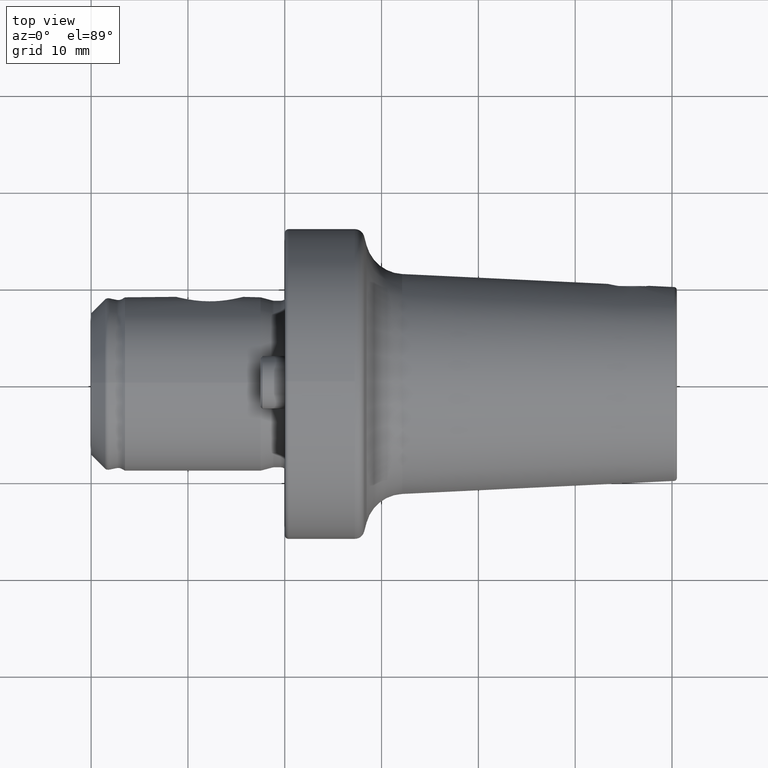
[diagram: clean part render]
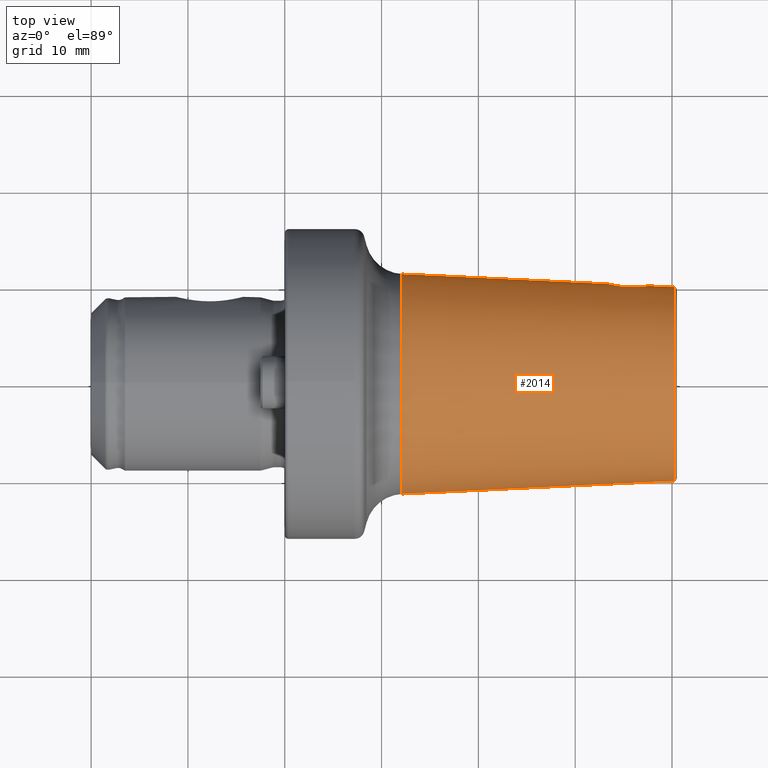
[diagram: same view with one face highlighted and labeled with its STEP entity id]
A machine part, top view. The second image highlights one B-rep face of the part: STEP entity #2014.
In plain terms, the highlighted conical surface has half-angle 2.744 deg.
Its self-contained STEP definition (entity closure, byte-faithful):
#44 = DIRECTION ( 'NONE',  ( -1.000000000000000000, -1.194808096838946000E-017, 0.0000000000000000000 ) ) ;
#205 = AXIS2_PLACEMENT_3D ( 'NONE', #3133, #3124, #3117 ) ;
#647 = VERTEX_POINT ( 'NONE', #930 ) ;
#781 = VERTEX_POINT ( 'NONE', #2693 ) ;
#930 = CARTESIAN_POINT ( 'NONE',  ( 40.21436315809494000, -10.01369119104573000, 0.0000000000000000000 ) ) ;
#1152 = AXIS2_PLACEMENT_3D ( 'NONE', #4785, #44, #4823 ) ;
#1156 = B_SPLINE_CURVE_WITH_KNOTS ( 'NONE', 3,
 ( #3064, #3006, #2335, #3068, #3059, #2746, #2764, #2741, #2725, #2804, #2698, #1337, #1320, #1932, #1925, #1914, #2220, #2158, #2175, #2080, #2107, #2060 ),
 .UNSPECIFIED., .F., .F.,
 ( 4, 2, 2, 2, 2, 2, 2, 2, 2, 2, 4 ),
 ( 0.5006833383641199300, 0.5481520035347401400, 0.5718863361200509100, 0.5956206687053616800, 0.6430893338759833300, 0.6668236664612948700, 0.6905579990466064200, 0.7380266642172279600, 0.7854953293878497200, 0.8329639945584712500, 0.8804326597290930100 ),
 .UNSPECIFIED. ) ;
#1316 = CARTESIAN_POINT ( 'NONE',  ( 37.61423800997615500, 10.13830824790992000, -1.106821354944760900E-007 ) ) ;
#1320 = CARTESIAN_POINT ( 'NONE',  ( 34.77451871940486000, 10.05357426139208100, 2.119329739271288600 ) ) ;
#1337 = CARTESIAN_POINT ( 'NONE',  ( 34.87910578632378400, 10.04095357779442000, 2.154306207191542600 ) ) ;
#1406 = B_SPLINE_CURVE_WITH_KNOTS ( 'NONE', 3,
 ( #2429, #2481, #2416, #2409, #2399, #2389, #2380, #2374 ),
 .UNSPECIFIED., .F., .F.,
 ( 4, 2, 2, 4 ),
 ( 0.3805760652261107000, 0.4106028835106128600, 0.4406297017951150700, 0.5006833383641199300 ),
 .UNSPECIFIED. ) ;
#1501 = DIRECTION ( 'NONE',  ( -0.9988532296229603000, -0.04787719364981369400, 0.0000000000000000000 ) ) ;
#1541 = EDGE_CURVE ( 'NONE', #2539, #3149, #1156, .T. ) ;
#1567 = CARTESIAN_POINT ( 'NONE',  ( 40.21436315809494000, -10.01369119104573200, 0.0000000000000000000 ) ) ;
#1685 = DIRECTION ( 'NONE',  ( 0.0000000000000000000, -1.000000000000000000, 0.0000000000000000000 ) ) ;
#1698 = DIRECTION ( 'NONE',  ( 1.000000000000000000, 1.194808096838946000E-017, -0.0000000000000000000 ) ) ;
#1700 = CARTESIAN_POINT ( 'NONE',  ( 12.12225719485066500, 5.283021692523478400E-016, 0.0000000000000000000 ) ) ;
#1821 = CARTESIAN_POINT ( 'NONE',  ( 37.02805566817581700, 10.04900002938377700, 1.540665172551289400 ) ) ;
#1914 = CARTESIAN_POINT ( 'NONE',  ( 33.96327138168756900, 10.18838567531910600, 1.606684304319525100 ) ) ;
#1925 = CARTESIAN_POINT ( 'NONE',  ( 34.29229643371812800, 10.12485671556089700, 1.883311458102856700 ) ) ;
#1932 = CARTESIAN_POINT ( 'NONE',  ( 34.47454420239556300, 10.09412557514168000, 1.993972754929441500 ) ) ;
#1985 = CARTESIAN_POINT ( 'NONE',  ( 40.21436315809494000, 10.01369119104573000, 1.308773771602840800E-015 ) ) ;
#2014 = ADVANCED_FACE ( 'NONE', ( #2587 ), #2530, .T. ) ;
#2040 = DIRECTION ( 'NONE',  ( -0.9988532296229603000, 0.04787719364981366000, 5.863265195540230000E-018 ) ) ;
#2060 = CARTESIAN_POINT ( 'NONE',  ( 33.32873818040997800, 10.34372948526703300, 5.042303346843759000E-008 ) ) ;
#2080 = CARTESIAN_POINT ( 'NONE',  ( 33.36076978453579800, 10.33492211989349300, 0.4427152134734587700 ) ) ;
#2099 = CARTESIAN_POINT ( 'NONE',  ( 40.21436315809494000, 10.01369119104573200, 1.226323486476420200E-015 ) ) ;
#2107 = CARTESIAN_POINT ( 'NONE',  ( 33.32888197602378700, 10.34372718169476400, 0.2218970613391326500 ) ) ;
#2121 = CARTESIAN_POINT ( 'NONE',  ( 33.32873818040997800, 10.34372948526703300, 5.042303346843759000E-008 ) ) ;
#2158 = CARTESIAN_POINT ( 'NONE',  ( 33.58268887727846400, 10.27694311820314400, 1.076959697046355100 ) ) ;
#2175 = CARTESIAN_POINT ( 'NONE',  ( 33.48711034062513600, 10.30182065011738900, 0.8682625611158737400 ) ) ;
#2220 = CARTESIAN_POINT ( 'NONE',  ( 33.81871978828871800, 10.22056168637167600, 1.442871163600282200 ) ) ;
#2335 = CARTESIAN_POINT ( 'NONE',  ( 36.71492396161749400, 10.01455750002953400, 1.839079452596326500 ) ) ;
#2374 = CARTESIAN_POINT ( 'NONE',  ( 37.02805566817581700, 10.04900002938377700, 1.540665172551289400 ) ) ;
#2380 = CARTESIAN_POINT ( 'NONE',  ( 37.21334066605516000, 10.07152855948749900, 1.335118831705580200 ) ) ;
#2389 = CARTESIAN_POINT ( 'NONE',  ( 37.35778806830776900, 10.09466682095757800, 1.097562579931961500 ) ) ;
#2399 = CARTESIAN_POINT ( 'NONE',  ( 37.51042537908070800, 10.12029114589198100, 0.6958274721076644900 ) ) ;
#2409 = CARTESIAN_POINT ( 'NONE',  ( 37.54968571837019200, 10.12704461244932300, 0.5571611290438357500 ) ) ;
#2416 = CARTESIAN_POINT ( 'NONE',  ( 37.60130820157920800, 10.13600716130010300, 0.2804258970327577200 ) ) ;
#2429 = CARTESIAN_POINT ( 'NONE',  ( 37.61423800997615500, 10.13830824790992000, -1.106821354944760900E-007 ) ) ;
#2481 = CARTESIAN_POINT ( 'NONE',  ( 37.61423261029767000, 10.13832106735686100, 0.1408146423204458500 ) ) ;
#2517 = VERTEX_POINT ( 'NONE', #1985 ) ;
#2530 = CONICAL_SURFACE ( 'NONE', #1152, 10.01369119104573200, 0.04789550343140613200 ) ;
#2539 = VERTEX_POINT ( 'NONE', #1821 ) ;
#2587 = FACE_OUTER_BOUND ( 'NONE', #4555, .T. ) ;
#2675 = CARTESIAN_POINT ( 'NONE',  ( 40.21436315809494000, 10.01369119104573200, 1.226323486476420200E-015 ) ) ;
#2692 = VECTOR ( 'NONE', #1501, 1000.000000000000000 ) ;
#2693 = CARTESIAN_POINT ( 'NONE',  ( 12.12225719485066500, -11.36020653218451100, 0.0000000000000000000 ) ) ;
#2695 = DIRECTION ( 'NONE',  ( -0.9988532296229603000, 0.04787719364981366000, 5.863265195540230000E-018 ) ) ;
#2698 = CARTESIAN_POINT ( 'NONE',  ( 35.08647182452007500, 10.01949966429717500, 2.206210184323280600 ) ) ;
#2725 = CARTESIAN_POINT ( 'NONE',  ( 35.50606602039950100, 9.988732074080207500, 2.251751692420390900 ) ) ;
#2741 = CARTESIAN_POINT ( 'NONE',  ( 35.72104467011029500, 9.981518438563568900, 2.237241804245655900 ) ) ;
#2744 = LINE ( 'NONE', #1567, #2692 ) ;
#2746 = CARTESIAN_POINT ( 'NONE',  ( 36.13351046855591900, 9.983951024371366500, 2.133554883997011800 ) ) ;
#2764 = CARTESIAN_POINT ( 'NONE',  ( 36.03143504284821600, 9.981981852721332900, 2.165691235149263000 ) ) ;
#2804 = CARTESIAN_POINT ( 'NONE',  ( 35.19084943211634500, 10.01045071145305700, 2.223810045336566300 ) ) ;
#3006 = CARTESIAN_POINT ( 'NONE',  ( 36.88160122012631300, 10.03119229286849600, 1.703138378327564700 ) ) ;
#3035 = VECTOR ( 'NONE', #2040, 1000.000000000000000 ) ;
#3042 = LINE ( 'NONE', #2099, #3035 ) ;
#3059 = CARTESIAN_POINT ( 'NONE',  ( 36.33488525622814100, 9.991038084269931100, 2.052680861297171000 ) ) ;
#3064 = CARTESIAN_POINT ( 'NONE',  ( 37.02805566817581700, 10.04900002938377700, 1.540665172551289400 ) ) ;
#3068 = CARTESIAN_POINT ( 'NONE',  ( 36.43457538336133400, 9.996163115710444900, 2.003750831948487100 ) ) ;
#3114 = CARTESIAN_POINT ( 'NONE',  ( 12.12225719485066500, 11.36020653218451000, 1.391224056729261400E-015 ) ) ;
#3117 = DIRECTION ( 'NONE',  ( 0.0000000000000000000, 1.000000000000000000, 0.0000000000000000000 ) ) ;
#3124 = DIRECTION ( 'NONE',  ( 1.000000000000000000, 1.194808096838946000E-017, -0.0000000000000000000 ) ) ;
#3133 = CARTESIAN_POINT ( 'NONE',  ( 40.21436315809494000, 8.639489258737668600E-016, 0.0000000000000000000 ) ) ;
#3149 = VERTEX_POINT ( 'NONE', #2121 ) ;
#3171 = CIRCLE ( 'NONE', #4273, 11.36020653218451300 ) ;
#3200 = VERTEX_POINT ( 'NONE', #1316 ) ;
#3373 = ORIENTED_EDGE ( 'NONE', *, *, #4286, .F. ) ;
#3429 = ORIENTED_EDGE ( 'NONE', *, *, #4184, .T. ) ;
#3433 = ORIENTED_EDGE ( 'NONE', *, *, #4093, .T. ) ;
#3489 = ORIENTED_EDGE ( 'NONE', *, *, #1541, .T. ) ;
#3552 = ORIENTED_EDGE ( 'NONE', *, *, #4034, .T. ) ;
#3606 = ORIENTED_EDGE ( 'NONE', *, *, #3947, .T. ) ;
#3615 = ORIENTED_EDGE ( 'NONE', *, *, #3775, .F. ) ;
#3775 = EDGE_CURVE ( 'NONE', #2517, #647, #4581, .T. ) ;
#3786 = VERTEX_POINT ( 'NONE', #3114 ) ;
#3832 = LINE ( 'NONE', #2675, #3942 ) ;
#3942 = VECTOR ( 'NONE', #2695, 1000.000000000000000 ) ;
#3947 = EDGE_CURVE ( 'NONE', #2517, #3200, #3832, .T. ) ;
#4034 = EDGE_CURVE ( 'NONE', #3200, #2539, #1406, .T. ) ;
#4093 = EDGE_CURVE ( 'NONE', #3149, #3786, #3042, .T. ) ;
#4184 = EDGE_CURVE ( 'NONE', #3786, #781, #3171, .T. ) ;
#4273 = AXIS2_PLACEMENT_3D ( 'NONE', #1700, #1698, #1685 ) ;
#4286 = EDGE_CURVE ( 'NONE', #647, #781, #2744, .T. ) ;
#4555 = EDGE_LOOP ( 'NONE', ( #3615, #3606, #3552, #3489, #3433, #3429, #3373 ) ) ;
#4581 = CIRCLE ( 'NONE', #205, 10.01369119104573000 ) ;
#4785 = CARTESIAN_POINT ( 'NONE',  ( 40.21436315809494000, 8.639489258737668600E-016, 0.0000000000000000000 ) ) ;
#4823 = DIRECTION ( 'NONE',  ( 0.0000000000000000000, -1.000000000000000000, 0.0000000000000000000 ) ) ;